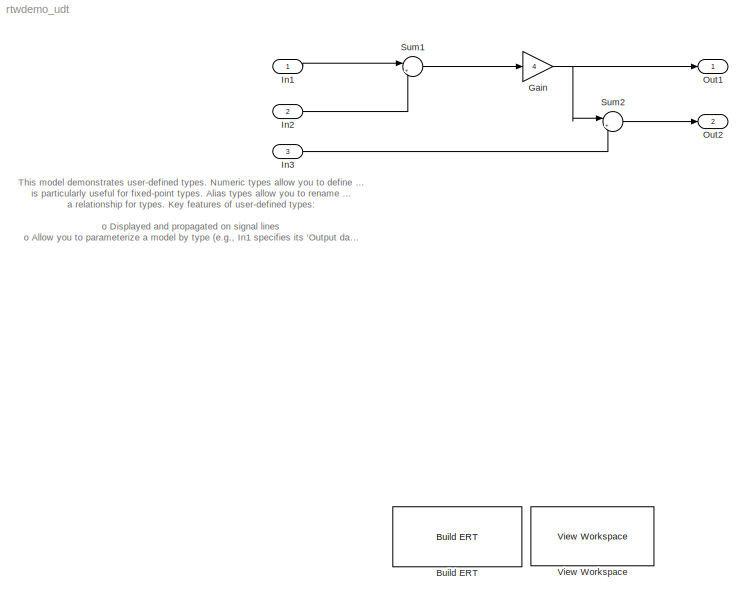
MODEL rtwdemo_udt
KIND model
CONFIG PostLoadFcn = rtwdemo_udt_data
BLOCK [Reference] Build ERT  REF=rtwdemowidgets/Build ERT
  Ports = []
  ShowPortLabels = on
  SourceBlock = rtwdemowidgets/Build ERT
  attrib_overrides = {}
BLOCK [Gain] Gain
  Gain = 4
  OutDataType = ENG_SPEED
  OutDataTypeMode = Specify via dialog
  ParameterDataTypeMode = Inherit via internal rule
  SaturateOnIntegerOverflow = off
BLOCK [Inport] In1
  DataType = Specify via dialog
  IconDisplay = Port number
  LatchInput = off
  OutDataType = ENG_SPEED
  Port = 1
BLOCK [Inport] In2
  DataType = Specify via dialog
  IconDisplay = Port number
  LatchInput = off
  OutDataType = ENG_SPEED
  Port = 2
BLOCK [Inport] In3
  DataType = Specify via dialog
  IconDisplay = Port number
  LatchInput = off
  OutDataType = S16
  Port = 3
BLOCK [Outport] Out1
  BusOutputAsStruct = off
  IconDisplay = Port number
BLOCK [Outport] Out2
  BusOutputAsStruct = off
  IconDisplay = Port number
  Port = 2
BLOCK [Sum] Sum1
  IconShape = round
  InputSameDT = off
  Inputs = |++
  OutDataTypeMode = Inherit via internal rule
  Ports = [2, 1]
  SaturateOnIntegerOverflow = off
BLOCK [Sum] Sum2
  IconShape = round
  InputSameDT = off
  Inputs = |++
  OutDataTypeMode = Inherit via internal rule
  Ports = [2, 1]
  SaturateOnIntegerOverflow = off
BLOCK [Reference] View Workspace  REF=rtwdemowidgets/View Workspace
  Ports = []
  ShowPortLabels = on
  SourceBlock = rtwdemowidgets/View Workspace
ANNOTATION (root): This model demonstrates user-defined types. Numeric types allow you to define abstract numeric types, which\nis particularly useful for fixed-point types. Alias types allow you to rename types, which allows you create\na relationship for types. Key features of user-defined types:\n\no Displayed and propagated on signal lines\no Allow you to parameterize a model by type (e.g., In1 specifies its 'Ou...<+859ch>
NET Gain:1 -> Out1:1, Sum2:1
LINE In1:1 -> Sum1:1
LINE In2:1 -> Sum1:2
LINE In3:1 -> Sum2:2
LINE Sum1:1 -> Gain:1
LINE Sum2:1 -> Out2:1
note: NET lines group one-source signal fan-out (src -> all destinations, sorted); 1:1 wires keep LINE
